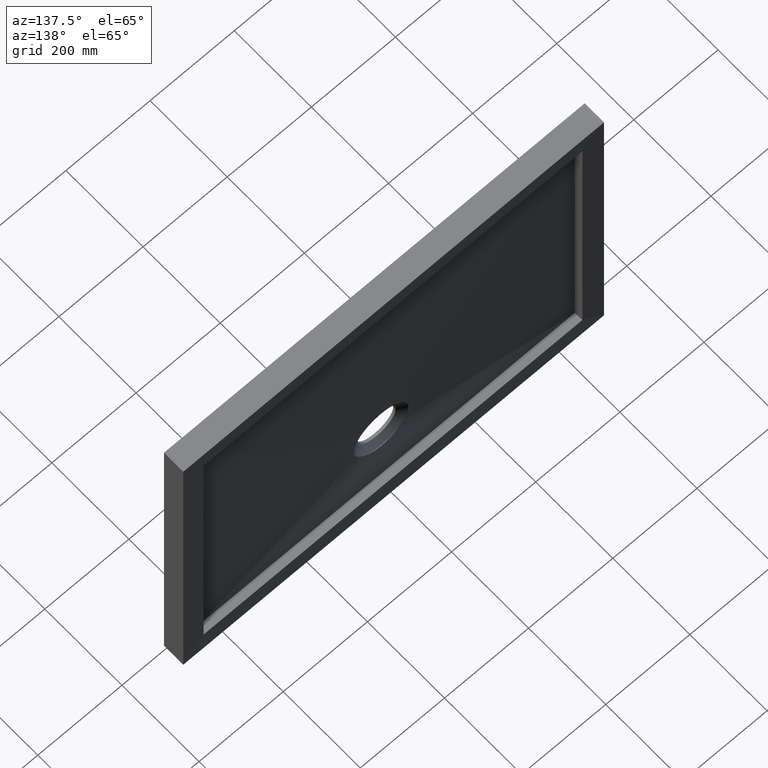
[diagram: clean part render]
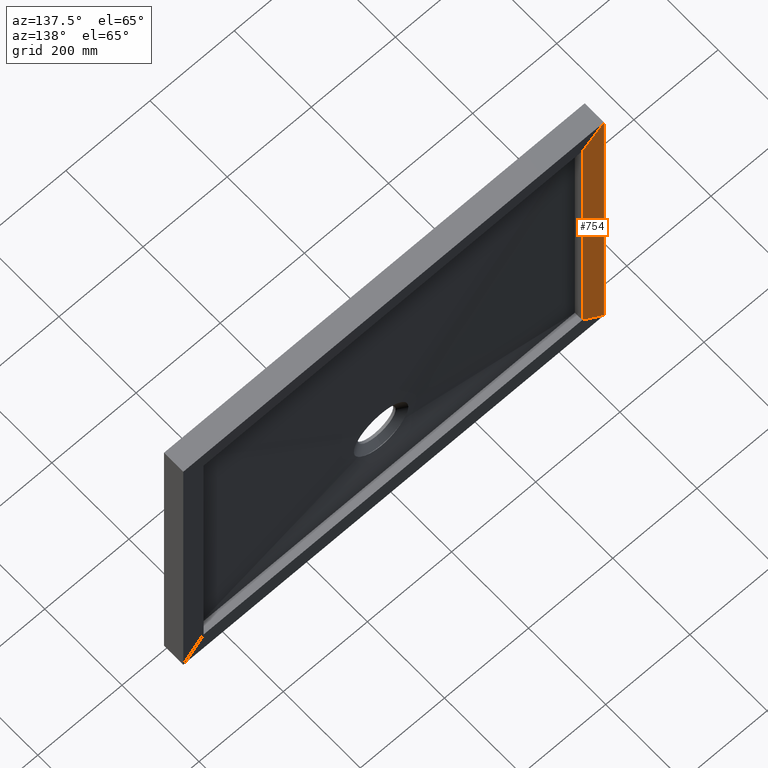
[diagram: same view with one face highlighted and labeled with its STEP entity id]
A machine part, auxiliary view. The second image highlights one B-rep face of the part: STEP entity #754.
In plain terms, the highlighted planar face has unit normal (0.0349, 0.9994, -0).
Its self-contained STEP definition (entity closure, byte-faithful):
#30 = VERTEX_POINT ( 'NONE', #982 ) ;
#35 = ORIENTED_EDGE ( 'NONE', *, *, #411, .T. ) ;
#56 = DIRECTION ( 'NONE',  ( -0.7068913075831636500, 0.02468518840782798000, 0.7068913075831636500 ) ) ;
#81 = CARTESIAN_POINT ( 'NONE',  ( -449.9999999999997700, 48.25745360236189200, 350.0000000000002300 ) ) ;
#83 = LINE ( 'NONE', #81, #134 ) ;
#117 = CARTESIAN_POINT ( 'NONE',  ( -499.9000000000048700, 50.00000000000000000, -399.9000000000047500 ) ) ;
#132 = VERTEX_POINT ( 'NONE', #117 ) ;
#134 = VECTOR ( 'NONE', #56, 1000.000000000000100 ) ;
#136 = CARTESIAN_POINT ( 'NONE',  ( -449.9999999999997700, 48.25745360236189200, 350.0000000000002300 ) ) ;
#149 = EDGE_CURVE ( 'NONE', #801, #30, #154, .T. ) ;
#154 = LINE ( 'NONE', #136, #633 ) ;
#200 = EDGE_CURVE ( 'NONE', #30, #842, #83, .T. ) ;
#214 = ORIENTED_EDGE ( 'NONE', *, *, #248, .F. ) ;
#248 = EDGE_CURVE ( 'NONE', #842, #132, #789, .T. ) ;
#266 = VECTOR ( 'NONE', #777, 1000.000000000000100 ) ;
#346 = CARTESIAN_POINT ( 'NONE',  ( -499.9000000000047500, 50.00000000000000000, 399.9000000000051500 ) ) ;
#366 = DIRECTION ( 'NONE',  ( 0.03489949670249557800, 0.9993908270190959800, -5.535174969562901600E-018 ) ) ;
#411 = EDGE_CURVE ( 'NONE', #801, #132, #455, .T. ) ;
#437 = VECTOR ( 'NONE', #631, 1000.000000000000000 ) ;
#452 = CARTESIAN_POINT ( 'NONE',  ( -449.9999999999998900, 48.25745360236189200, -349.9999999999998900 ) ) ;
#455 = LINE ( 'NONE', #527, #266 ) ;
#489 = CARTESIAN_POINT ( 'NONE',  ( -499.9000000000048700, 50.00000000000000000, -349.9999999999998900 ) ) ;
#514 = DIRECTION ( 'NONE',  ( -1.586032892321652000E-016, 0.0000000000000000000, -1.000000000000000000 ) ) ;
#527 = CARTESIAN_POINT ( 'NONE',  ( -0.2742113370277077200, 32.55268300197022300, 99.72578866297161000 ) ) ;
#578 = AXIS2_PLACEMENT_3D ( 'NONE', #452, #366, #514 ) ;
#616 = ORIENTED_EDGE ( 'NONE', *, *, #200, .F. ) ;
#631 = DIRECTION ( 'NONE',  ( -1.586032892321652000E-016, 0.0000000000000000000, -1.000000000000000000 ) ) ;
#633 = VECTOR ( 'NONE', #816, 1000.000000000000000 ) ;
#687 = EDGE_LOOP ( 'NONE', ( #35, #214, #616, #956 ) ) ;
#747 = CARTESIAN_POINT ( 'NONE',  ( -449.9999999999998900, 48.25745360236189200, -349.9999999999998900 ) ) ;
#754 = ADVANCED_FACE ( 'NONE', ( #819 ), #908, .T. ) ;
#777 = DIRECTION ( 'NONE',  ( -0.7068913075831643200, 0.02468518840782799000, -0.7068913075831632100 ) ) ;
#789 = LINE ( 'NONE', #489, #437 ) ;
#801 = VERTEX_POINT ( 'NONE', #747 ) ;
#816 = DIRECTION ( 'NONE',  ( 1.586032892321652000E-016, 0.0000000000000000000, 1.000000000000000000 ) ) ;
#819 = FACE_OUTER_BOUND ( 'NONE', #687, .T. ) ;
#842 = VERTEX_POINT ( 'NONE', #346 ) ;
#908 = PLANE ( 'NONE',  #578 ) ;
#956 = ORIENTED_EDGE ( 'NONE', *, *, #149, .F. ) ;
#982 = CARTESIAN_POINT ( 'NONE',  ( -449.9999999999997700, 48.25745360236189200, 350.0000000000002300 ) ) ;